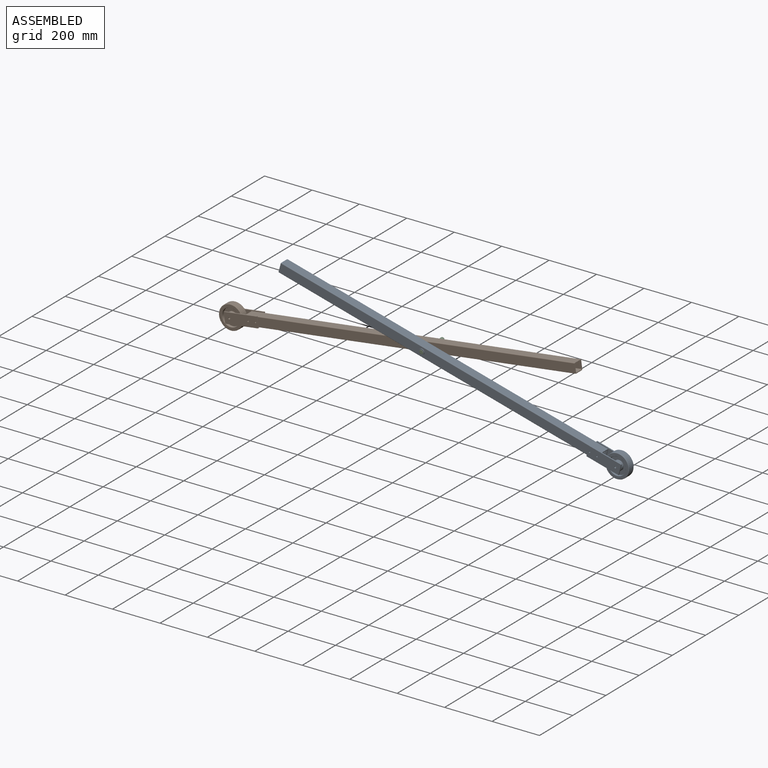
[diagram: assembled view]
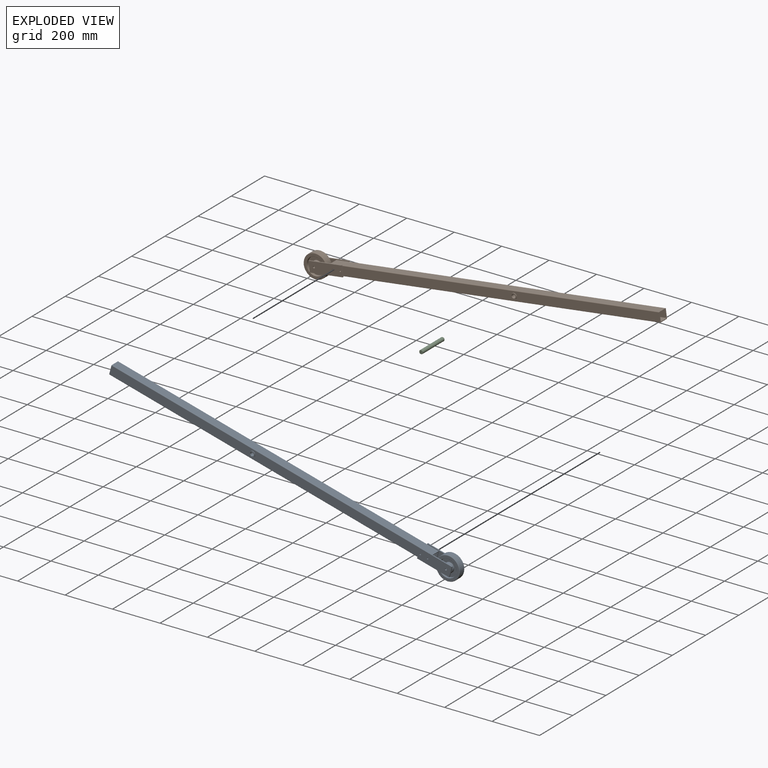
[diagram: exploded view]
GUIDED TOUR — MATED ASSEMBLY WITH SUBASSEMBLIES (Onshape document 15efd71c1603924e5f9fa92a, AutoMate assembly 15efd71c1603924e5f9fa92a_ca3fd9b285ac05b5e3fbfa89_e951f62505115665aa1df28f_default)

This assembly has 11 component occurrences arranged in 3 top-level units: 1 individual components plus 2 subassemblies (S0, S1). The tour has two levels: first the top level, where each subassembly is treated as one rigid unit; then each subassembly is toured internally in its own section (nesting deeper than one subassembly level is flattened into its subassembly's section).

Components are labeled P0..P10 across the whole record; subassembly units are labeled S0..S1. A mate is a constraint between two units; its type names the relative motion it leaves free:
  FASTENED — locks the two components together rigidly (no relative motion),
  REVOLUTE — leaves rotation about the listed axis free (a hinge).
Axis/direction vectors are unit vectors and 'through' points are millimeter coordinates, both in the assembly's world frame.

TOP-LEVEL MATES (between units; each subassembly's internal mates are listed in its own section)
  1. REVOLUTE "Drehen 2": S1 <-> S0, axis (0.000, -1.000, 0.000) through (-1166.84, -342.71, 442.33) mm
  2. REVOLUTE "Drehen 1": P8 <-> S0, axis (0.000, -1.000, 0.000) through (-1166.84, -388.71, 442.33) mm

TOP-LEVEL ASSEMBLY ORDER
  1. P8 — the base component [order verified]
  2. S1 [order verified]
  3. S0 [order verified]
Order-tag legend:
  [order verified] — this step's position reverses a verified removal order: the component was checked to insert without passing through the ones already placed.

Of the 11 component occurrences, 7 carry the full construction recipe — the FeatureScript program that regenerates the part's solid from scratch; the rest are supplied as boundary geometry only. Each toured unit is shown spotlighted twice — assembled, then exploded with a leader line back to its socket (green = recipe-attached component, orange = geometry-only, blue = subassembly unit; the rest desaturated gray).
NOTE — this tour is split across 2 documents so each fits a 32k-token context. This is document 1: the component sections continue in the remaining 1 document, each repeating the header above.
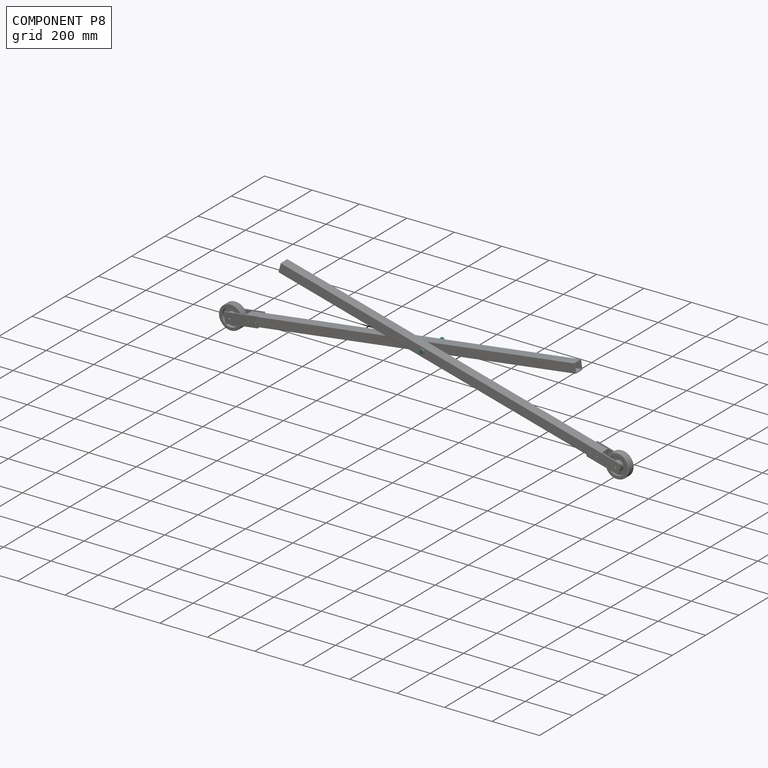
[diagram: component P8 — assembled]
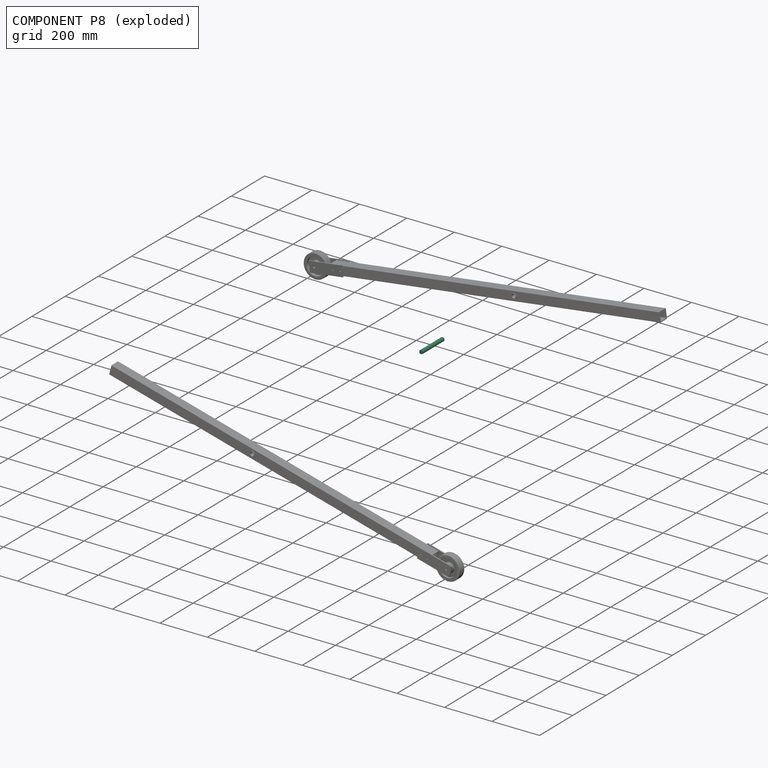
[diagram: component P8 — exploded]
COMPONENT P8 — recipe-attached (CADFS 00886189, mesh-verified: the recipe's output STEP matches this component's geometry to below the mesh-comparison resolution (tessellation chordal tolerance ~0.198 mm)).
Held by: REVOLUTE mate "Drehen 1" to P0.
Construction recipe (FeatureScript — the CAD program that rebuilds this solid; sketch coordinates are in the units given by the * unit suffixes, e.g. mm):

FeatureScript 1634;
import(path : "onshape/std/geometry.fs", version : "1634.0");
import(path : "onshape/std/common.fs", version : "1634.0");
const mm = millimeter;
const VERTEX = EntityType.VERTEX;
const EDGE = EntityType.EDGE;
const FACE = EntityType.FACE;
const BODY = EntityType.BODY;
function v(x, y){return vector(x, y);}
function OD(order){return orderDisambiguation(order);}
function OSD(set){return originalSetDisambiguation(set);}
function TD(topology){return topologyDisambiguation(topology);}
function TDD(query){return trueDependencyDisambiguation(query);}
function sQuery(a, b, c) {return sketchEntityQuery(a, b, c);}

annotation { "Feature Type Name" : "Feature", "Feature Type Description" : "" }
export const myFeature = defineFeature(function(context is Context, id is Id, definition is map)
    precondition{}
    {
        {
            var Q0;
            Q0=qCreatedBy(makeId("Front.planeOp"),FACE);
            var sketch = newSketch(context, id + "F0", { "sketchPlane" : qUnion([Q0])});
            skCircle(sketch, "E0", {"center": v(0, 0) * mm, "radius": 8 * mm});
            skSolve(sketch);
        }
        {
            var Q0;
            Q0=makeQuery(id+"F0.imprint","IMPRINT",FACE,{"disambiguationData":[TD([[makeQuery(id+"F0.imprint","IMPRINT",EDGE,{"derivedFrom":sQuery(id+"F0.wireOp",EDGE,"E0")}),1.0]])]});
            extrude(context, id + "F1", {"entities" : qUnion([Q0]), "depth" : 130 * mm, "offsetDistance" : 25 * mm});
        }
        {
            var Q0;
            Q0=makeQuery(id+"F1.opExtrude","CAP_EDGE",EDGE,{"disambiguationData":[OSD([sQuery(id+"F0.wireOp",EDGE,"E0")])],"isStart":false});
            fillet(context, id + "F2", {"entities" : qUnion([Q0]), "radius" : 1 * mm, "tangentPropagation" : true, "allowEdgeOverflow" : false});
        }
    });
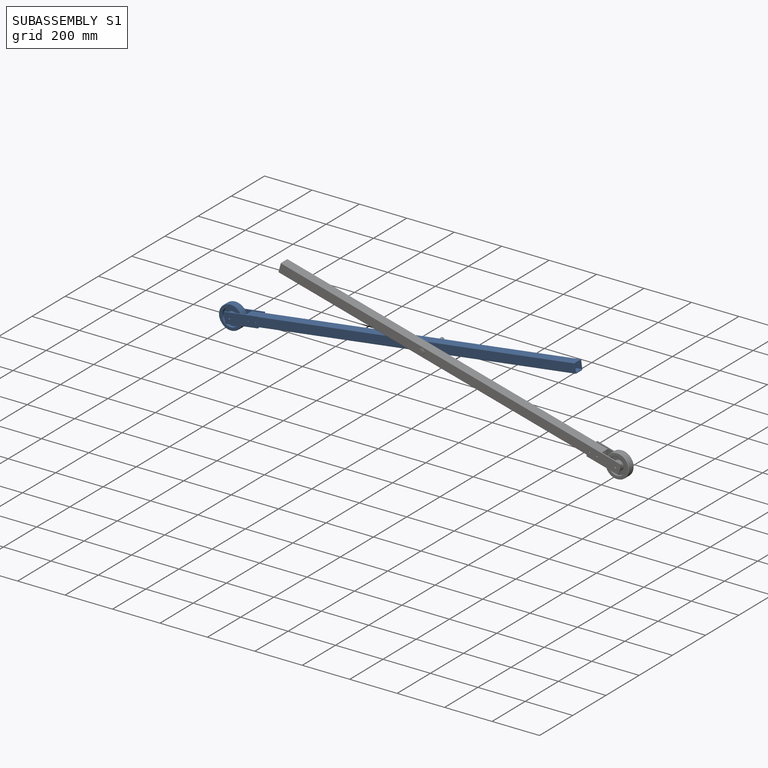
[diagram: subassembly S1 — assembled]
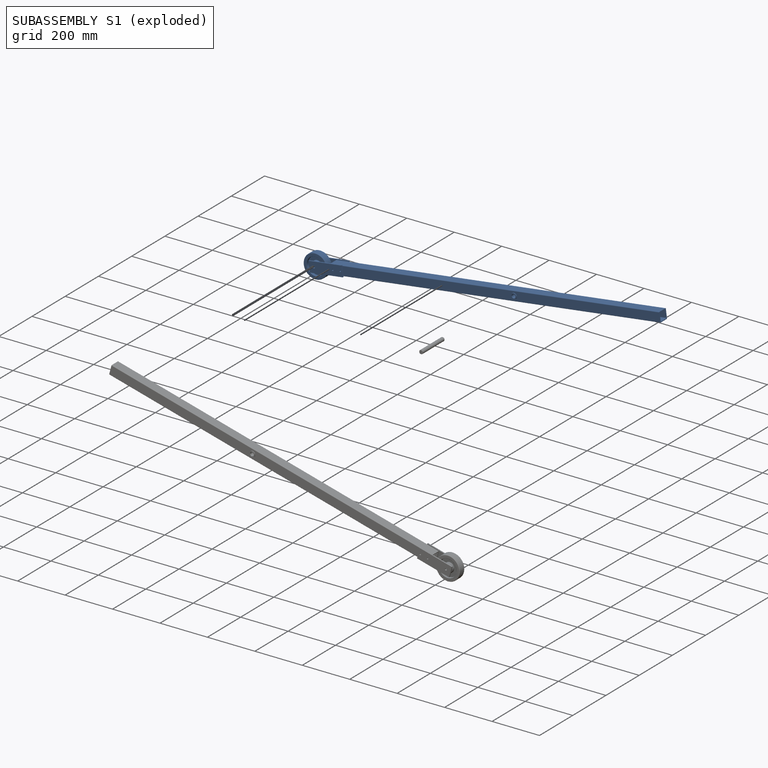
[diagram: subassembly S1 — exploded]
SUBASSEMBLY S1 — 5 components (P2, P5, P6, P7, P9), of which 3 recipe-attached; toured below.
Held by: REVOLUTE mate "Drehen 2" to S0.
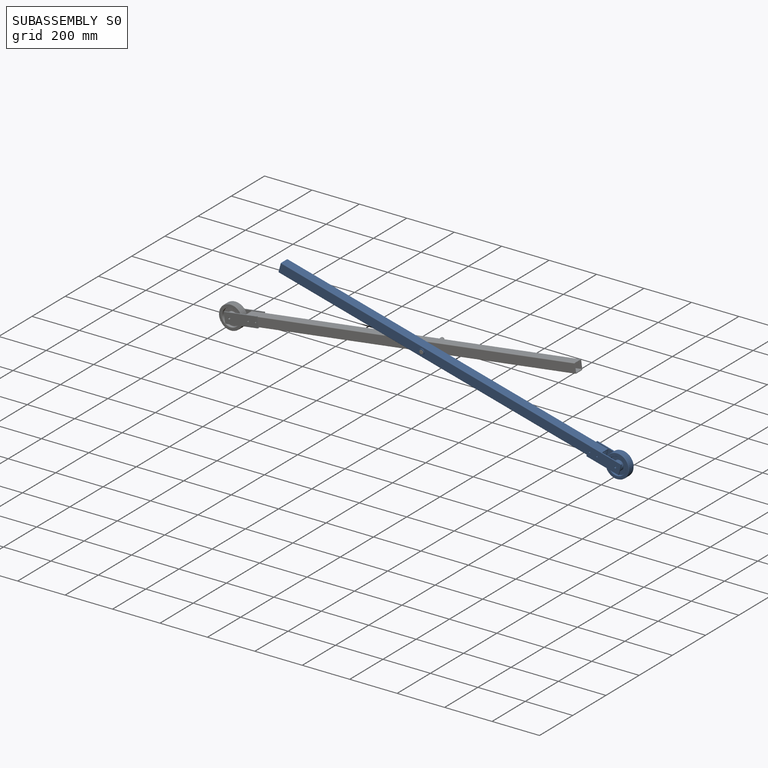
[diagram: subassembly S0 — assembled]
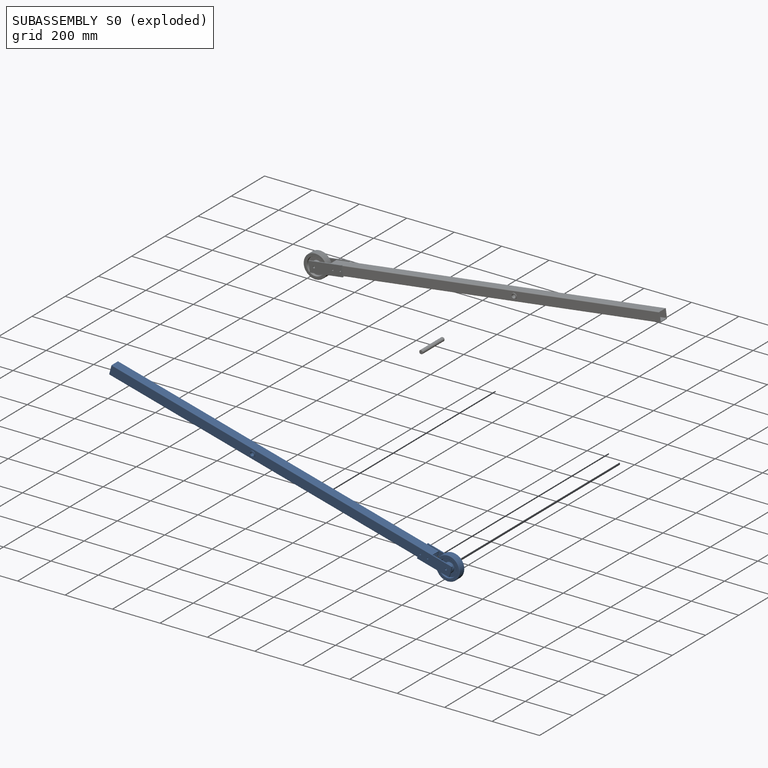
[diagram: subassembly S0 — exploded]
SUBASSEMBLY S0 — 5 components (P0, P1, P3, P4, P10), of which 3 recipe-attached; toured below.
Held by: REVOLUTE mate "Drehen 2" to S1; REVOLUTE mate "Drehen 1" to P8.
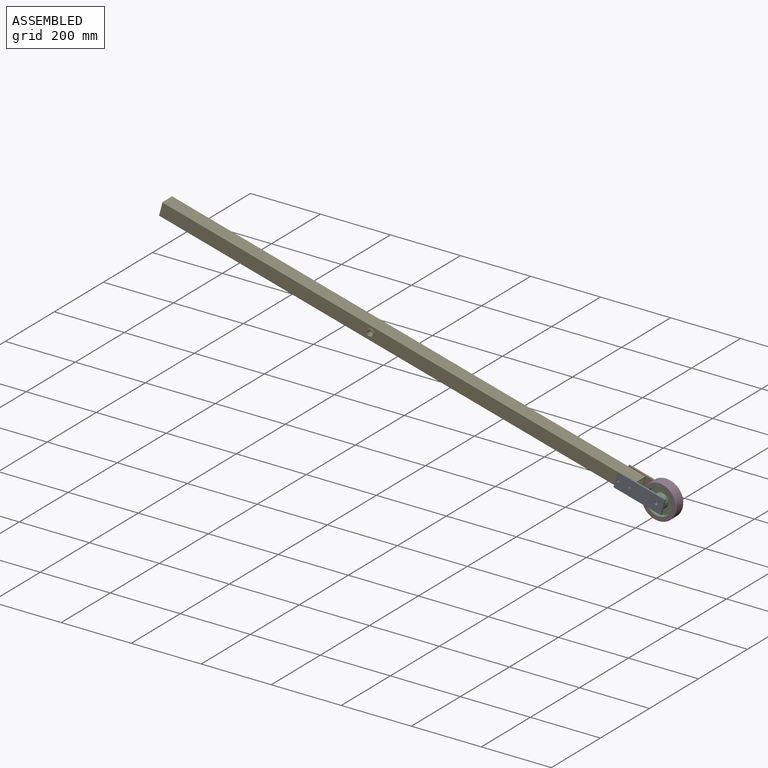
[diagram: subassembly S0 — assembled view]
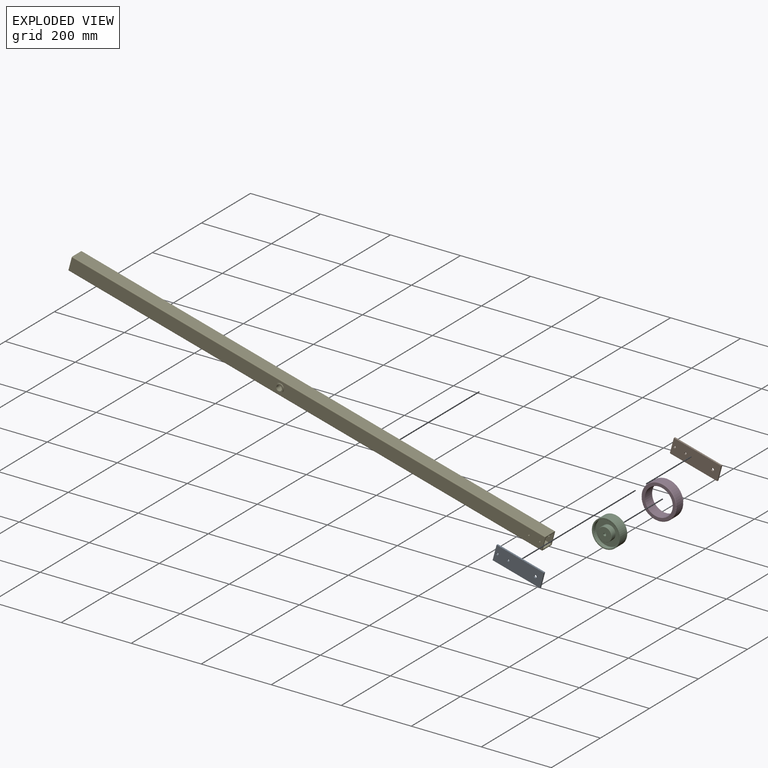
[diagram: subassembly S0 — exploded view]
SUBASSEMBLY S0 TOUR — 5 components, shown here in isolation at its own camera.

INTERNAL MATES
  1. FASTENED "Fest 1": P1 <-> P10, direction (0.000, -1.000, 0.000) through (-455.86, -345.71, 252.09) mm
  2. FASTENED "Fest 1": P3 <-> P4, direction (0.000, -1.000, 0.000) through (-347.66, -379.71, 223.15) mm
  3. FASTENED "Fest 2": P10 <-> P0, direction (0.000, -1.000, 0.000) through (-455.86, -385.71, 252.09) mm
  4. REVOLUTE "Drehen 1": P3 <-> P1, axis (0.000, 1.000, 0.000) through (-347.66, -345.71, 223.15) mm
  5. FASTENED "Fest 1": P3 <-> P4, direction (0.000, -1.000, 0.000) through (-347.66, -379.71, 223.15) mm
  6. FASTENED "Fest 1": P1 <-> P10, direction (0.000, -1.000, 0.000) through (-455.86, -345.71, 252.09) mm
  7. FASTENED "Fest 2": P10 <-> P0, direction (0.000, -1.000, 0.000) through (-455.86, -385.71, 252.09) mm
  8. REVOLUTE "Drehen 1": P3 <-> P1, axis (0.000, 1.000, 0.000) through (-347.66, -345.71, 223.15) mm

ASSEMBLY ORDER (within the subassembly)
  1. P4 — the base component [order verified]
  2. P3 [order verified]
  3. P10 [order verified]
  4. P0 [order verified]
  5. P1 [order verified]
(P3 verified with a relaxed clearance tolerance: the source model stores slight part interference there.)
Order-tag legend:
  [order verified] — this step's position reverses a verified removal order: the component was checked to insert without passing through the ones already placed.
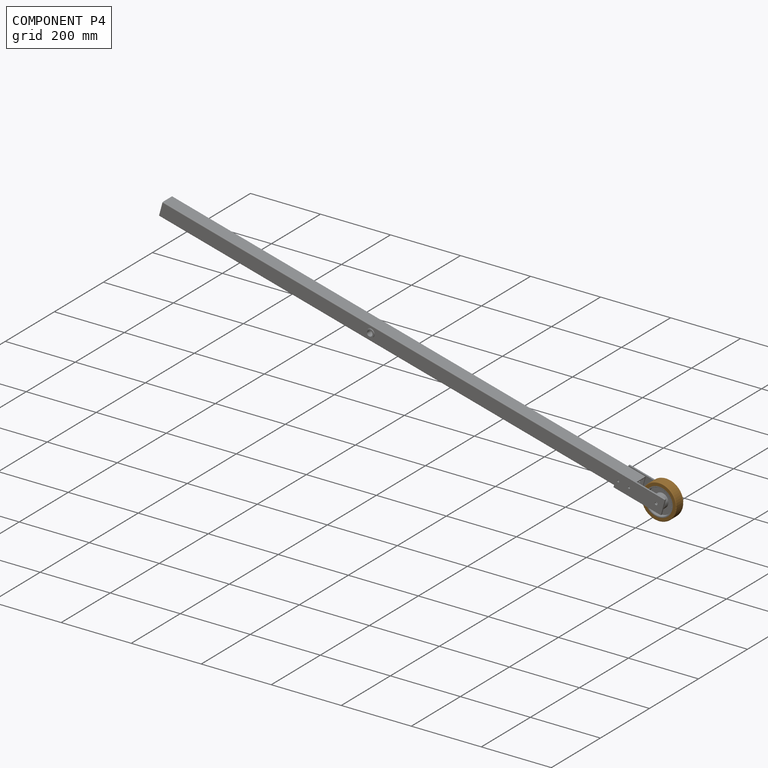
[diagram: component P4 — assembled]
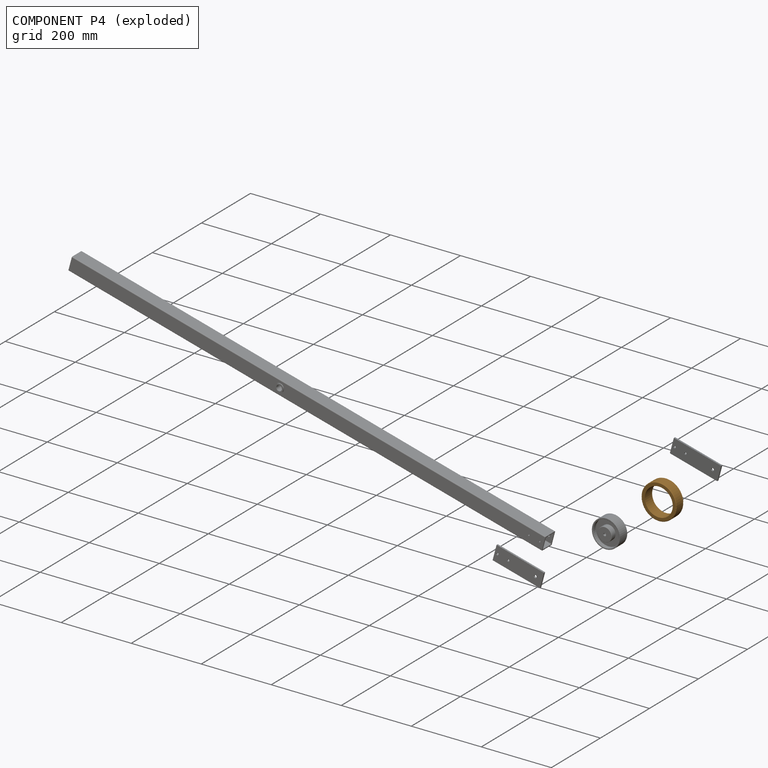
[diagram: component P4 — exploded]
COMPONENT P4 — geometry summary (no construction recipe available for this part):
  bounding box: 108.2 x 108.2 x 30.0 mm
  B-rep topology: 1 solid, 6 faces, 20 edges
  volume: 84288 mm^3 (24% of its bounding box)
  symmetry: revolution-symmetric about the x axis through its bounding-box center; 2-fold rotationally symmetric about the y axis; 2-fold rotationally symmetric about the z axis; mirror-symmetric across its x mid-plane, y mid-plane, z mid-plane
Held by: FASTENED mate "Fest 1" to P3; FASTENED mate "Fest 1" to P3.
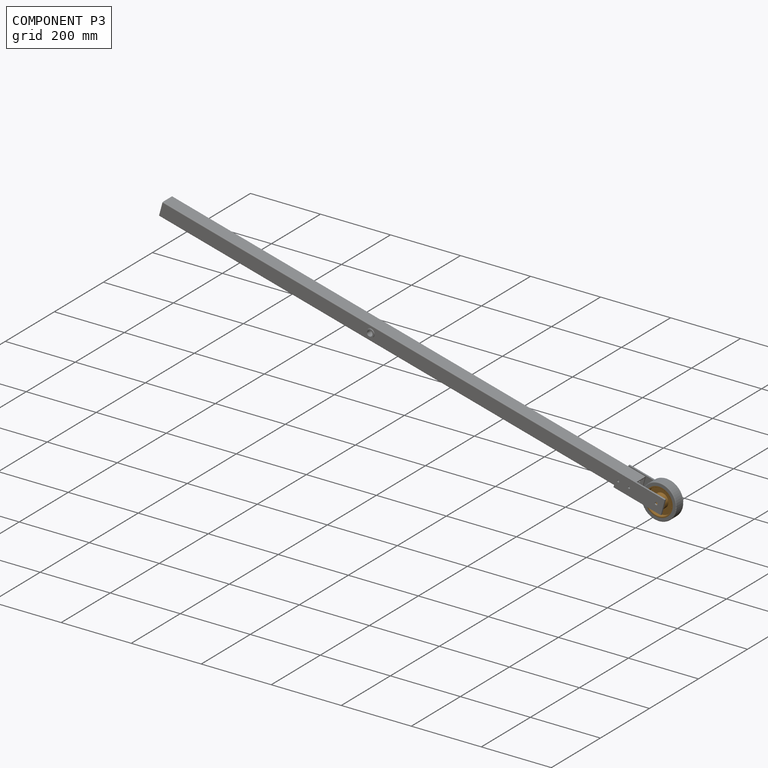
[diagram: component P3 — assembled]
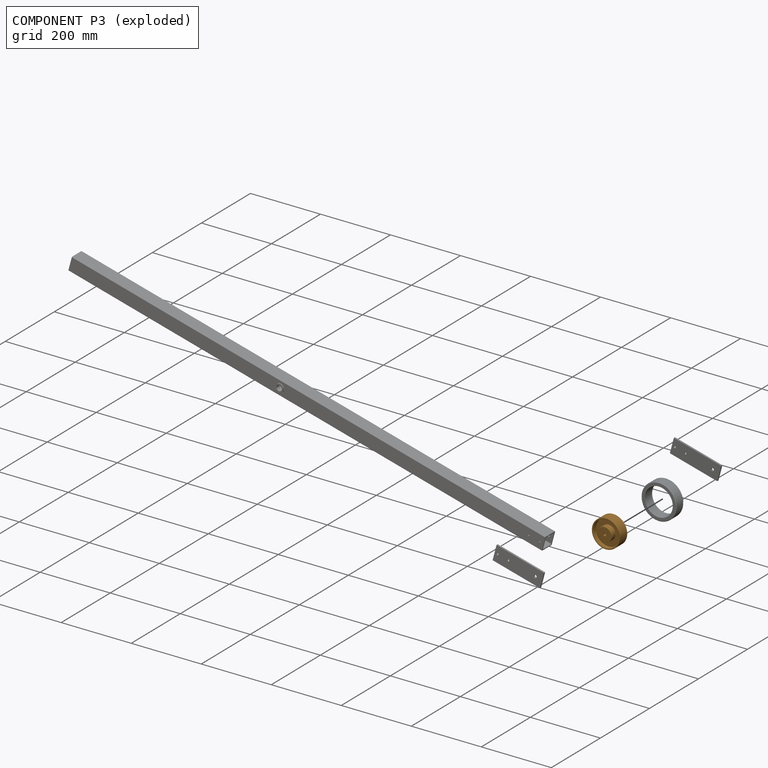
[diagram: component P3 — exploded]
COMPONENT P3 — geometry summary (no construction recipe available for this part):
  bounding box: 82.7 x 82.7 x 40.0 mm
  B-rep topology: 1 solid, 16 faces, 58 edges
  volume: 96767 mm^3 (35% of its bounding box)
  symmetry: revolution-symmetric about the x axis through its bounding-box center; 2-fold rotationally symmetric about the y axis; 2-fold rotationally symmetric about the z axis; mirror-symmetric across its x mid-plane, y mid-plane, z mid-plane
Held by: FASTENED mate "Fest 1" to P4; REVOLUTE mate "Drehen 1" to P1; FASTENED mate "Fest 1" to P4; REVOLUTE mate "Drehen 1" to P1.
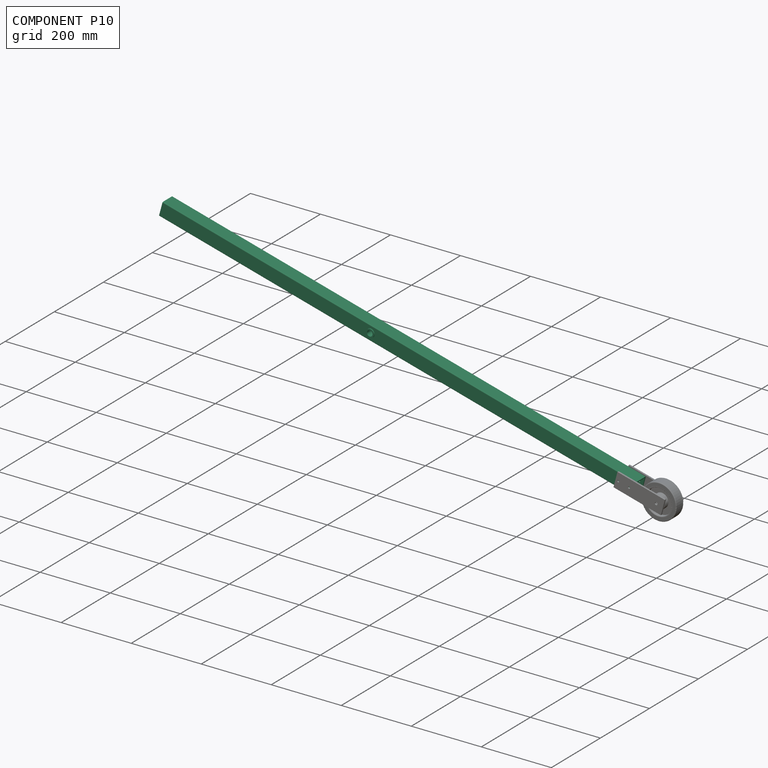
[diagram: component P10 — assembled]
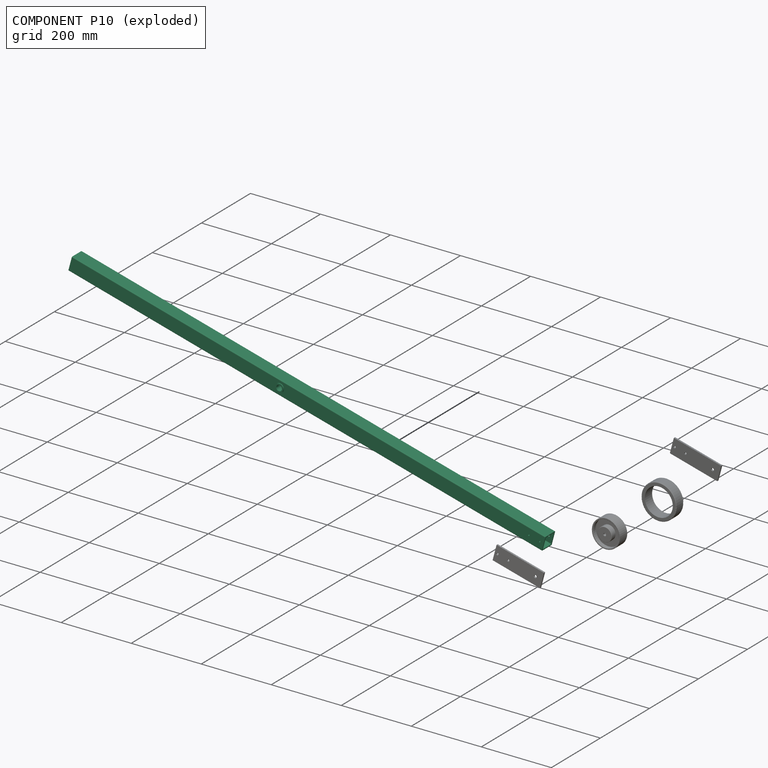
[diagram: component P10 — exploded]
COMPONENT P10 — recipe-attached (CADFS 00886186, mesh-verified: the recipe's output STEP matches this component's geometry to below the mesh-comparison resolution (tessellation chordal tolerance ~2.1 mm)).
Held by: FASTENED mate "Fest 1" to P1; FASTENED mate "Fest 2" to P0; FASTENED mate "Fest 1" to P1; FASTENED mate "Fest 2" to P0.
Construction recipe (FeatureScript — the CAD program that rebuilds this solid; sketch coordinates are in the units given by the * unit suffixes, e.g. mm):

FeatureScript 1634;
import(path : "onshape/std/geometry.fs", version : "1634.0");
import(path : "onshape/std/common.fs", version : "1634.0");
const mm = millimeter;
const VERTEX = EntityType.VERTEX;
const EDGE = EntityType.EDGE;
const FACE = EntityType.FACE;
const BODY = EntityType.BODY;
function v(x, y){return vector(x, y);}
function OD(order){return orderDisambiguation(order);}
function OSD(set){return originalSetDisambiguation(set);}
function TD(topology){return topologyDisambiguation(topology);}
function TDD(query){return trueDependencyDisambiguation(query);}
function sQuery(a, b, c) {return sketchEntityQuery(a, b, c);}

annotation { "Feature Type Name" : "Feature", "Feature Type Description" : "" }
export const myFeature = defineFeature(function(context is Context, id is Id, definition is map)
    precondition{}
    {
        {
            assignVariable(context, id + "F0", {"name" : "spanntraeger", "anyValue" : 1400});
        }
        {
            assignVariable(context, id + "F1", {"name" : "HaupttraegerRohr_X", "anyValue" : 40});
        }
        {
            var Q0;
            Q0=qCreatedBy(makeId("Right.planeOp"),FACE);
            var sketch = newSketch(context, id + "F2", { "sketchPlane" : qUnion([Q0])});
            skLineSegment(sketch, "E0.bottom", {"start": v(-17.11, 20.05) * mm, "end": v(18.89, 20.05) * mm});
            skLineSegment(sketch, "E0.top", {"start": v(-17.11, -19.95) * mm, "end": v(18.89, -19.95) * mm});
            skLineSegment(sketch, "E0.left", {"start": v(-19.11, 18.05) * mm, "end": v(-19.11, -17.95) * mm});
            skLineSegment(sketch, "E0.right", {"start": v(20.89, 18.05) * mm, "end": v(20.89, -17.95) * mm});
            skLineSegment(sketch, "E1.0", {"start": v(-16.11, 15.05) * mm, "end": v(-16.11, -14.95) * mm});
            skLineSegment(sketch, "E1.1", {"start": v(-14.11, 17.05) * mm, "end": v(17.89, 17.05) * mm});
            skLineSegment(sketch, "E1.2", {"start": v(17.89, 17.05) * mm, "end": v(17.89, -14.95) * mm});
            skLineSegment(sketch, "E1.3", {"start": v(-14.11, -16.95) * mm, "end": v(15.89, -16.95) * mm});
            skPoint(sketch, "E2.visualSharp", {"position": v(-19.11, 20.05) * mm});
            skArc(sketch, "E2.filletArc", {"start": v(-17.11, 20.05) * mm, "mid": v(-18.53, 19.46) * mm, "end": v(-19.11, 18.05) * mm});
            skPoint(sketch, "E3.visualSharp", {"position": v(-19.11, -19.95) * mm});
            skArc(sketch, "E3.filletArc", {"start": v(-19.11, -17.95) * mm, "mid": v(-18.53, -19.36) * mm, "end": v(-17.11, -19.95) * mm});
            skPoint(sketch, "E4.visualSharp", {"position": v(20.89, -19.95) * mm});
            skArc(sketch, "E4.filletArc", {"start": v(18.89, -19.95) * mm, "mid": v(20.3, -19.36) * mm, "end": v(20.89, -17.95) * mm});
            skPoint(sketch, "E5.visualSharp", {"position": v(20.89, 20.05) * mm});
            skArc(sketch, "E5.filletArc", {"start": v(20.89, 18.05) * mm, "mid": v(20.3, 19.46) * mm, "end": v(18.89, 20.05) * mm});
            skPoint(sketch, "E6.visualSharp", {"position": v(17.89, -16.95) * mm});
            skArc(sketch, "E6.filletArc", {"start": v(15.89, -16.95) * mm, "mid": v(17.3, -16.36) * mm, "end": v(17.89, -14.95) * mm});
            skPoint(sketch, "E7.visualSharp", {"position": v(-16.11, -16.95) * mm});
            skArc(sketch, "E7.filletArc", {"start": v(-16.11, -14.95) * mm, "mid": v(-15.53, -16.36) * mm, "end": v(-14.11, -16.95) * mm});
            skPoint(sketch, "E8.visualSharp", {"position": v(-16.11, 17.05) * mm});
            skArc(sketch, "E8.filletArc", {"start": v(-14.11, 17.05) * mm, "mid": v(-15.53, 16.46) * mm, "end": v(-16.11, 15.05) * mm});
            skSolve(sketch);
        }
        {
            var Q0;
            Q0 = qSketchRegion(id + "F2", true);
            extrude(context, id + "F3", {"entities" : qUnion([Q0]), "oppositeDirection" : true, "depth" : (getVariable(context, 'spanntraeger')) * mm, "offsetDistance" : 25 * mm});
        }
        {
            var Q0;
            Q0=makeQuery(id+"F3.opExtrude","SWEPT_FACE",FACE,{"disambiguationData":[OSD([sQuery(id+"F2.wireOp",EDGE,"E0.left")])]});
            var sketch = newSketch(context, id + "F4", { "sketchPlane" : qUnion([Q0])});
            skCircle(sketch, "E9", {"center": v(-780, 0.05) * mm, "radius": 8 * mm});
            skCircle(sketch, "E10", {"center": v(-780, 0.05) * mm, "radius": 12 * mm});
            skLineSegment(sketch, "E11", {"start": v(0, 0) * mm, "end": v(-110.05, 0) * mm, "construction": true});
            skCircle(sketch, "E12", {"center": v(-12, 0) * mm, "radius": 2 * mm});
            skCircle(sketch, "E13", {"center": v(-44, 0) * mm, "radius": 2 * mm});
            skSolve(sketch);
        }
        {
            var Q0;
            Q0=makeQuery(id+"F4.imprint","IMPRINT",FACE,{"disambiguationData":[TD([[makeQuery(id+"F4.imprint","IMPRINT",EDGE,{"derivedFrom":sQuery(id+"F4.wireOp",EDGE,"E9")}),-1.0]])]});
            extrude(context, id + "F5", {"entities" : qUnion([Q0]), "operationType" : NewBodyOperationType.ADD, "depth" : 3 * mm, "offsetDistance" : 25 * mm, "hasSecondDirection" : true, "secondDirectionOppositeDirection" : true, "secondDirectionDepth" : (getVariable(context, 'HaupttraegerRohr_X') + 3) * mm});
        }
        {
            var Q0;
            Q0=makeQuery(id+"F5.boolean.opBoolean","SPLIT",FACE,{"disambiguationData":[TD([makeQuery(id+"F5.opExtrude","SWEPT_FACE",FACE,{"disambiguationData":[OSD([sQuery(id+"F4.wireOp",EDGE,"E9")])]})])],"derivedFrom":makeQuery(id+"F3.opExtrude","SWEPT_FACE",FACE,{"disambiguationData":[OSD([sQuery(id+"F2.wireOp",EDGE,"E0.right")])]})});
            extrude(context, id + "F6", {"entities" : qUnion([Q0]), "operationType" : NewBodyOperationType.REMOVE, "oppositeDirection" : true, "depth" : 63 * mm, "offsetDistance" : 25 * mm});
        }
        {
            var Q0;
            Q0=makeQuery(id+"F4.imprint","IMPRINT",FACE,{"disambiguationData":[TD([[makeQuery(id+"F4.imprint","IMPRINT",EDGE,{"derivedFrom":sQuery(id+"F4.wireOp",EDGE,"E13")}),1.0]])]});
            var Q1;
            Q1=makeQuery(id+"F4.imprint","IMPRINT",FACE,{"disambiguationData":[TD([[makeQuery(id+"F4.imprint","IMPRINT",EDGE,{"derivedFrom":sQuery(id+"F4.wireOp",EDGE,"E12")}),1.0]])]});
            extrude(context, id + "F7", {"entities" : qUnion([Q0, Q1]), "operationType" : NewBodyOperationType.REMOVE, "oppositeDirection" : true, "depth" : 50000 * mm, "offsetDistance" : 25 * mm});
        }
    });
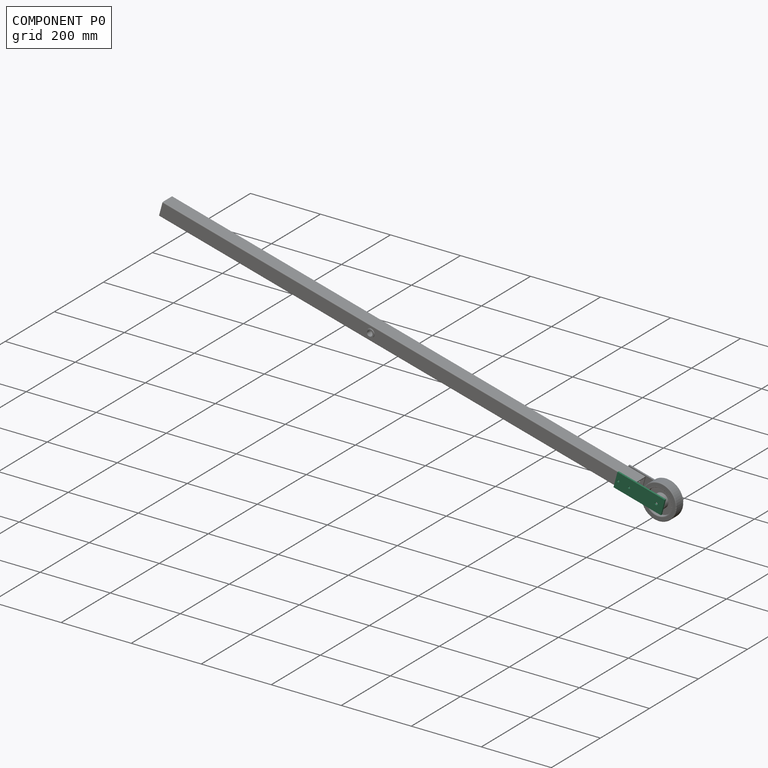
[diagram: component P0 — assembled]
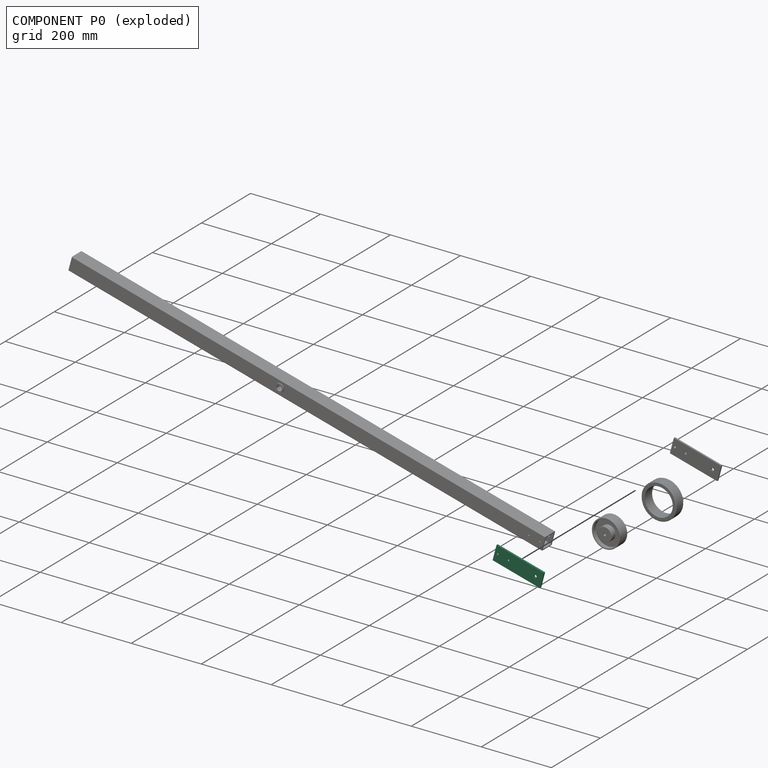
[diagram: component P0 — exploded]
COMPONENT P0 — recipe-attached (CADFS 00886190, mesh-verified: the recipe's output STEP matches this component's geometry to below the mesh-comparison resolution (tessellation chordal tolerance ~0.22 mm)).
Held by: FASTENED mate "Fest 2" to P10; FASTENED mate "Fest 2" to P10.
Construction recipe (FeatureScript — the CAD program that rebuilds this solid; sketch coordinates are in the units given by the * unit suffixes, e.g. mm):

FeatureScript 1634;
import(path : "onshape/std/geometry.fs", version : "1634.0");
import(path : "onshape/std/common.fs", version : "1634.0");
const mm = millimeter;
const VERTEX = EntityType.VERTEX;
const EDGE = EntityType.EDGE;
const FACE = EntityType.FACE;
const BODY = EntityType.BODY;
function v(x, y){return vector(x, y);}
function OD(order){return orderDisambiguation(order);}
function OSD(set){return originalSetDisambiguation(set);}
function TD(topology){return topologyDisambiguation(topology);}
function TDD(query){return trueDependencyDisambiguation(query);}
function sQuery(a, b, c) {return sketchEntityQuery(a, b, c);}

annotation { "Feature Type Name" : "Feature", "Feature Type Description" : "" }
export const myFeature = defineFeature(function(context is Context, id is Id, definition is map)
    precondition{}
    {
        {
            var Q0;
            Q0=qCreatedBy(makeId("Front.planeOp"),FACE);
            var sketch = newSketch(context, id + "F0", { "sketchPlane" : qUnion([Q0])});
            skLineSegment(sketch, "E0.bottom", {"start": v(0, 0) * mm, "end": v(-140, 0) * mm});
            skLineSegment(sketch, "E0.top", {"start": v(0, 44) * mm, "end": v(-140, 44) * mm});
            skLineSegment(sketch, "E0.left", {"start": v(0, 0) * mm, "end": v(0, 44) * mm});
            skLineSegment(sketch, "E0.right", {"start": v(-140, 0) * mm, "end": v(-140, 44) * mm});
            skLineSegment(sketch, "E1.left", {"start": v(6.83, 16.52) * mm, "end": v(6.83, 16.52) * mm});
            skLineSegment(sketch, "E1.right", {"start": v(3.62, 16.52) * mm, "end": v(3.62, 16.52) * mm});
            skCircle(sketch, "E2", {"center": v(-120, 22) * mm, "radius": 4 * mm});
            skLineSegment(sketch, "E3", {"start": v(-120, 22) * mm, "end": v(-22.8, 22) * mm, "construction": true});
            skCircle(sketch, "E4", {"center": v(-8, 22) * mm, "radius": 3 * mm});
            skCircle(sketch, "E5", {"center": v(-40, 22) * mm, "radius": 3 * mm});
            skSolve(sketch);
        }
        {
            var Q0;
            Q0=makeQuery(id+"F0.imprint","IMPRINT",FACE,{"disambiguationData":[TD([[makeQuery(id+"F0.imprint","IMPRINT",EDGE,{"derivedFrom":sQuery(id+"F0.wireOp",EDGE,"E0.bottom")}),-1.0]])]});
            extrude(context, id + "F1", {"entities" : qUnion([Q0]), "depth" : 5 * mm, "offsetDistance" : 25 * mm});
        }
    });
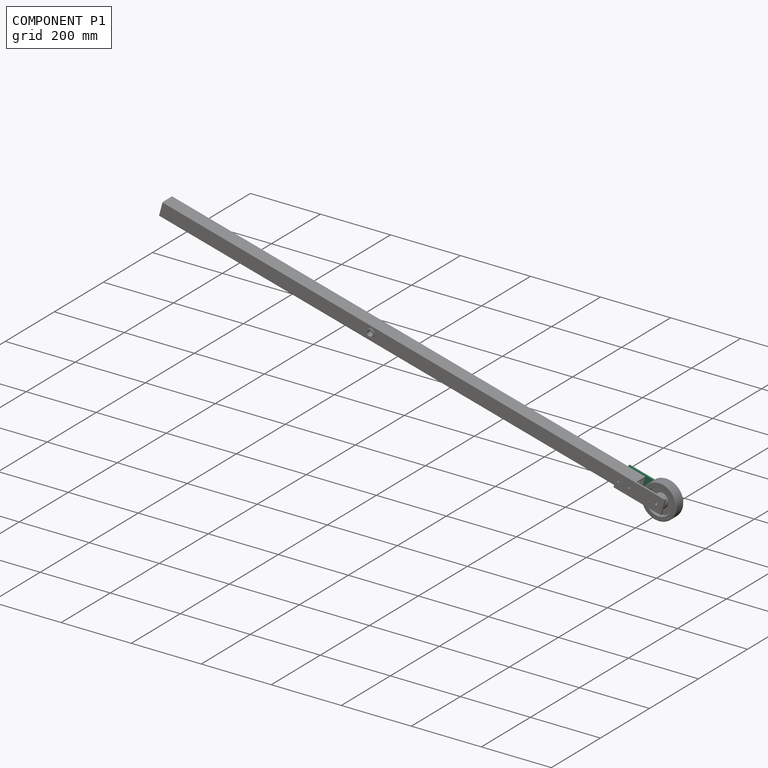
[diagram: component P1 — assembled]
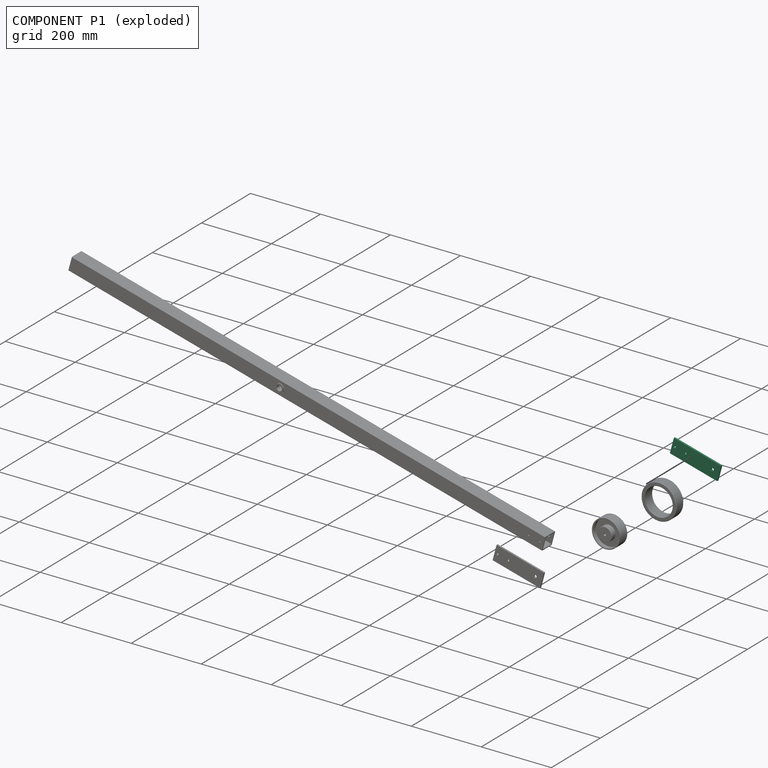
[diagram: component P1 — exploded]
COMPONENT P1 — same part as P0 (CADFS 00886190); its construction recipe is shown at P0.
Held by: FASTENED mate "Fest 1" to P10; REVOLUTE mate "Drehen 1" to P3; FASTENED mate "Fest 1" to P10; REVOLUTE mate "Drehen 1" to P3.
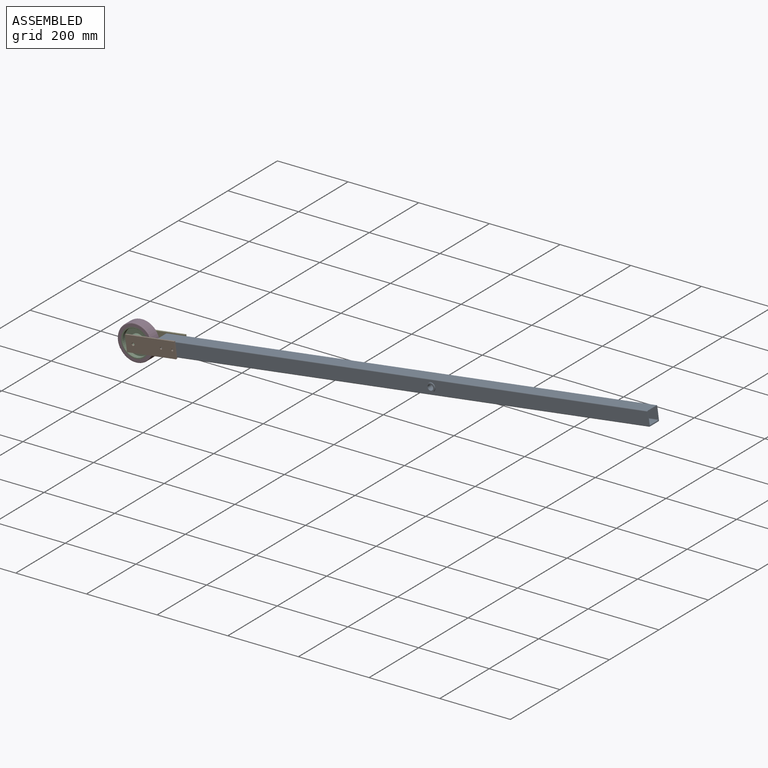
[diagram: subassembly S1 — assembled view]
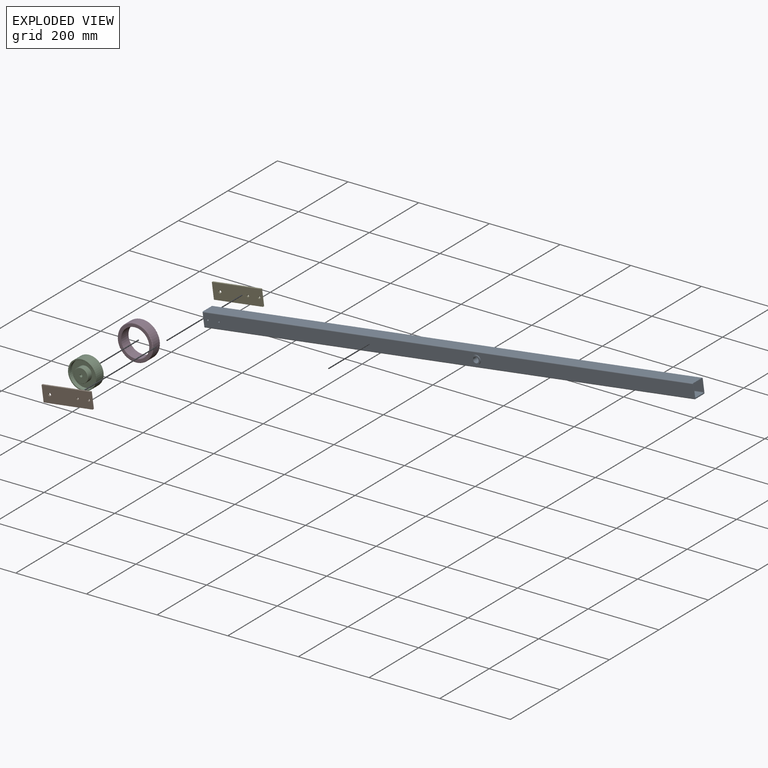
[diagram: subassembly S1 — exploded view]
SUBASSEMBLY S1 TOUR — 5 components, shown here in isolation at its own camera.

INTERNAL MATES
  1. FASTENED "Fest 1": P5 <-> P2, direction (0.000, 1.000, 0.000) through (-1896.23, -339.71, 343.87) mm
  2. FASTENED "Fest 1": P6 <-> P7, direction (0.000, 1.000, 0.000) through (-2007.22, -305.71, 328.90) mm
  3. FASTENED "Fest 2": P2 <-> P9, direction (0.000, 1.000, 0.000) through (-1896.23, -299.71, 343.87) mm
  4. REVOLUTE "Drehen 1": P6 <-> P5, axis (0.000, -1.000, 0.000) through (-2007.22, -339.71, 328.90) mm
  5. FASTENED "Fest 1": P5 <-> P2, direction (0.000, 1.000, 0.000) through (-1896.23, -339.71, 343.87) mm
  6. FASTENED "Fest 1": P6 <-> P7, direction (0.000, 1.000, 0.000) through (-2007.22, -305.71, 328.90) mm
  7. REVOLUTE "Drehen 1": P6 <-> P5, axis (0.000, -1.000, 0.000) through (-2007.22, -339.71, 328.90) mm
  8. FASTENED "Fest 2": P2 <-> P9, direction (0.000, 1.000, 0.000) through (-1896.23, -299.71, 343.87) mm

ASSEMBLY ORDER (within the subassembly)
  1. P7 — the base component [order verified]
  2. P6 [order verified]
  3. P2 [order verified]
  4. P9 [order verified]
  5. P5 [order verified]
(P6 verified with a relaxed clearance tolerance: the source model stores slight part interference there.)
Order-tag legend:
  [order verified] — this step's position reverses a verified removal order: the component was checked to insert without passing through the ones already placed.
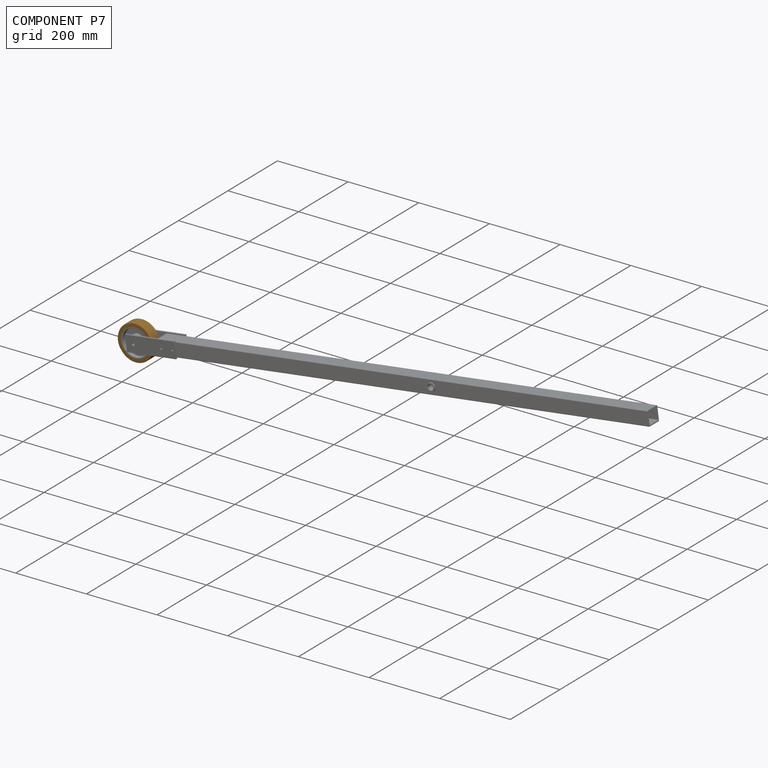
[diagram: component P7 — assembled]
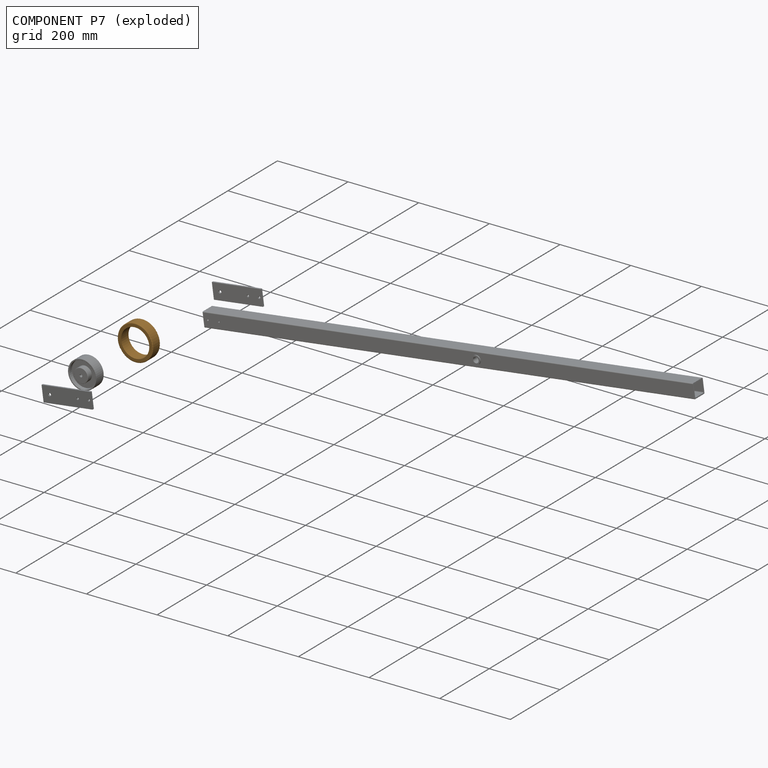
[diagram: component P7 — exploded]
COMPONENT P7 — geometry summary (no construction recipe available for this part):
  bounding box: 108.2 x 108.2 x 30.0 mm
  B-rep topology: 1 solid, 6 faces, 20 edges
  volume: 84288 mm^3 (24% of its bounding box)
  symmetry: revolution-symmetric about the x axis through its bounding-box center; 2-fold rotationally symmetric about the y axis; 2-fold rotationally symmetric about the z axis; mirror-symmetric across its x mid-plane, y mid-plane, z mid-plane
Held by: FASTENED mate "Fest 1" to P6; FASTENED mate "Fest 1" to P6.
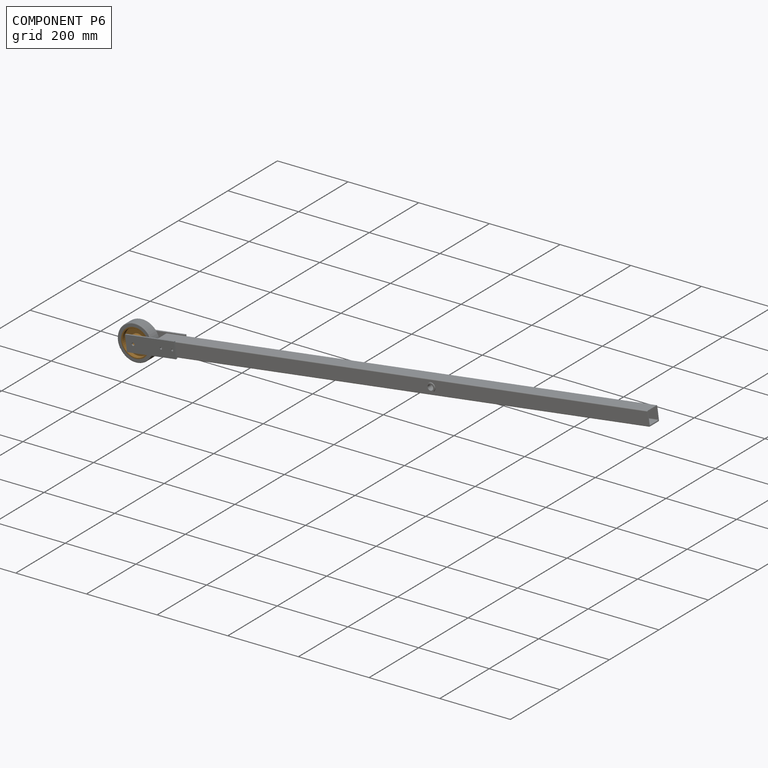
[diagram: component P6 — assembled]
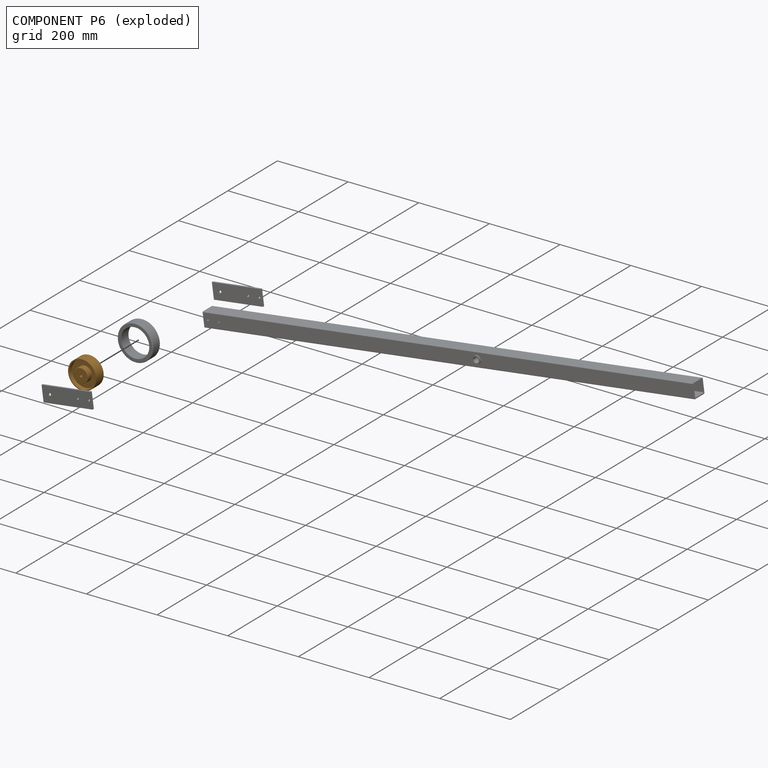
[diagram: component P6 — exploded]
COMPONENT P6 — geometry summary (no construction recipe available for this part):
  bounding box: 82.7 x 82.7 x 40.0 mm
  B-rep topology: 1 solid, 16 faces, 58 edges
  volume: 96767 mm^3 (35% of its bounding box)
  symmetry: revolution-symmetric about the x axis through its bounding-box center; 2-fold rotationally symmetric about the y axis; 2-fold rotationally symmetric about the z axis; mirror-symmetric across its x mid-plane, y mid-plane, z mid-plane
Held by: FASTENED mate "Fest 1" to P7; REVOLUTE mate "Drehen 1" to P5; FASTENED mate "Fest 1" to P7; REVOLUTE mate "Drehen 1" to P5.
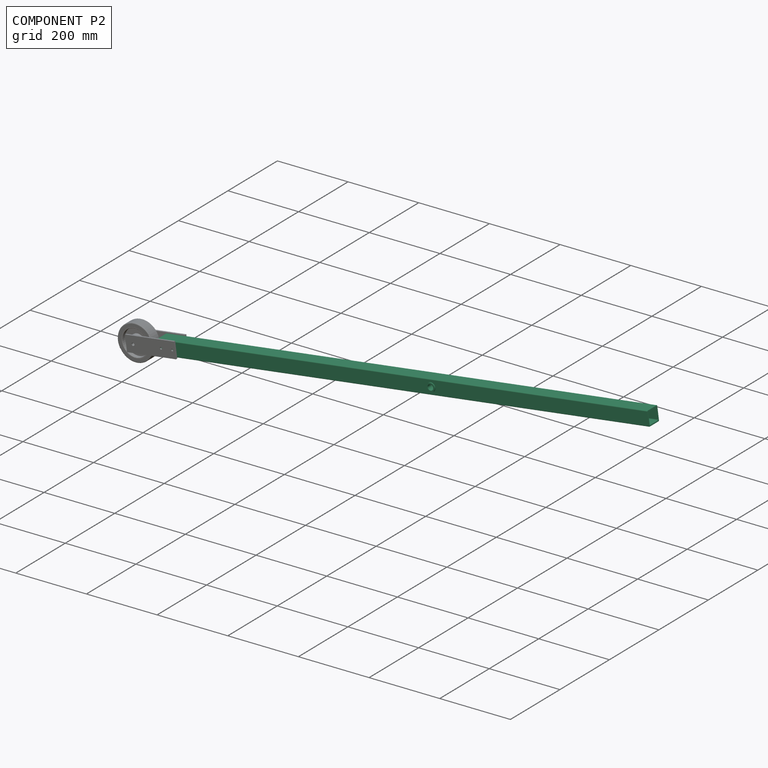
[diagram: component P2 — assembled]
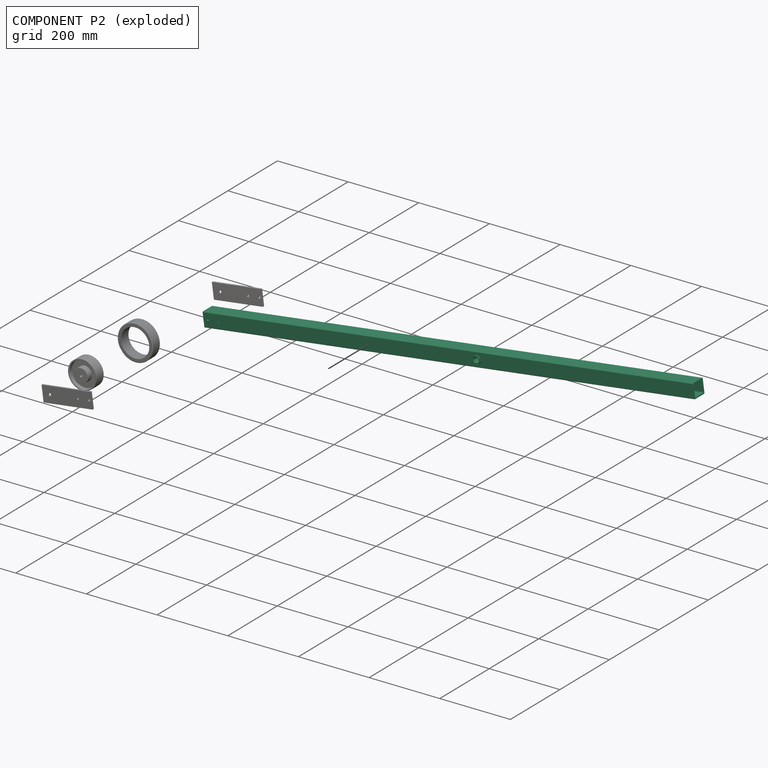
[diagram: component P2 — exploded]
COMPONENT P2 — recipe-attached (CADFS 00886186, mesh-verified: the recipe's output STEP matches this component's geometry to below the mesh-comparison resolution (tessellation chordal tolerance ~2.1 mm)).
Held by: FASTENED mate "Fest 1" to P5; FASTENED mate "Fest 2" to P9; FASTENED mate "Fest 1" to P5; FASTENED mate "Fest 2" to P9.
Construction recipe (FeatureScript — the CAD program that rebuilds this solid; sketch coordinates are in the units given by the * unit suffixes, e.g. mm):

FeatureScript 1634;
import(path : "onshape/std/geometry.fs", version : "1634.0");
import(path : "onshape/std/common.fs", version : "1634.0");
const mm = millimeter;
const VERTEX = EntityType.VERTEX;
const EDGE = EntityType.EDGE;
const FACE = EntityType.FACE;
const BODY = EntityType.BODY;
function v(x, y){return vector(x, y);}
function OD(order){return orderDisambiguation(order);}
function OSD(set){return originalSetDisambiguation(set);}
function TD(topology){return topologyDisambiguation(topology);}
function TDD(query){return trueDependencyDisambiguation(query);}
function sQuery(a, b, c) {return sketchEntityQuery(a, b, c);}

annotation { "Feature Type Name" : "Feature", "Feature Type Description" : "" }
export const myFeature = defineFeature(function(context is Context, id is Id, definition is map)
    precondition{}
    {
        {
            assignVariable(context, id + "F0", {"name" : "spanntraeger", "anyValue" : 1400});
        }
        {
            assignVariable(context, id + "F1", {"name" : "HaupttraegerRohr_X", "anyValue" : 40});
        }
        {
            var Q0;
            Q0=qCreatedBy(makeId("Right.planeOp"),FACE);
            var sketch = newSketch(context, id + "F2", { "sketchPlane" : qUnion([Q0])});
            skLineSegment(sketch, "E0.bottom", {"start": v(-17.11, 20.05) * mm, "end": v(18.89, 20.05) * mm});
            skLineSegment(sketch, "E0.top", {"start": v(-17.11, -19.95) * mm, "end": v(18.89, -19.95) * mm});
            skLineSegment(sketch, "E0.left", {"start": v(-19.11, 18.05) * mm, "end": v(-19.11, -17.95) * mm});
            skLineSegment(sketch, "E0.right", {"start": v(20.89, 18.05) * mm, "end": v(20.89, -17.95) * mm});
            skLineSegment(sketch, "E1.0", {"start": v(-16.11, 15.05) * mm, "end": v(-16.11, -14.95) * mm});
            skLineSegment(sketch, "E1.1", {"start": v(-14.11, 17.05) * mm, "end": v(17.89, 17.05) * mm});
            skLineSegment(sketch, "E1.2", {"start": v(17.89, 17.05) * mm, "end": v(17.89, -14.95) * mm});
            skLineSegment(sketch, "E1.3", {"start": v(-14.11, -16.95) * mm, "end": v(15.89, -16.95) * mm});
            skPoint(sketch, "E2.visualSharp", {"position": v(-19.11, 20.05) * mm});
            skArc(sketch, "E2.filletArc", {"start": v(-17.11, 20.05) * mm, "mid": v(-18.53, 19.46) * mm, "end": v(-19.11, 18.05) * mm});
            skPoint(sketch, "E3.visualSharp", {"position": v(-19.11, -19.95) * mm});
            skArc(sketch, "E3.filletArc", {"start": v(-19.11, -17.95) * mm, "mid": v(-18.53, -19.36) * mm, "end": v(-17.11, -19.95) * mm});
            skPoint(sketch, "E4.visualSharp", {"position": v(20.89, -19.95) * mm});
            skArc(sketch, "E4.filletArc", {"start": v(18.89, -19.95) * mm, "mid": v(20.3, -19.36) * mm, "end": v(20.89, -17.95) * mm});
            skPoint(sketch, "E5.visualSharp", {"position": v(20.89, 20.05) * mm});
            skArc(sketch, "E5.filletArc", {"start": v(20.89, 18.05) * mm, "mid": v(20.3, 19.46) * mm, "end": v(18.89, 20.05) * mm});
            skPoint(sketch, "E6.visualSharp", {"position": v(17.89, -16.95) * mm});
            skArc(sketch, "E6.filletArc", {"start": v(15.89, -16.95) * mm, "mid": v(17.3, -16.36) * mm, "end": v(17.89, -14.95) * mm});
            skPoint(sketch, "E7.visualSharp", {"position": v(-16.11, -16.95) * mm});
            skArc(sketch, "E7.filletArc", {"start": v(-16.11, -14.95) * mm, "mid": v(-15.53, -16.36) * mm, "end": v(-14.11, -16.95) * mm});
            skPoint(sketch, "E8.visualSharp", {"position": v(-16.11, 17.05) * mm});
            skArc(sketch, "E8.filletArc", {"start": v(-14.11, 17.05) * mm, "mid": v(-15.53, 16.46) * mm, "end": v(-16.11, 15.05) * mm});
            skSolve(sketch);
        }
        {
            var Q0;
            Q0 = qSketchRegion(id + "F2", true);
            extrude(context, id + "F3", {"entities" : qUnion([Q0]), "oppositeDirection" : true, "depth" : (getVariable(context, 'spanntraeger')) * mm, "offsetDistance" : 25 * mm});
        }
        {
            var Q0;
            Q0=makeQuery(id+"F3.opExtrude","SWEPT_FACE",FACE,{"disambiguationData":[OSD([sQuery(id+"F2.wireOp",EDGE,"E0.left")])]});
            var sketch = newSketch(context, id + "F4", { "sketchPlane" : qUnion([Q0])});
            skCircle(sketch, "E9", {"center": v(-780, 0.05) * mm, "radius": 8 * mm});
            skCircle(sketch, "E10", {"center": v(-780, 0.05) * mm, "radius": 12 * mm});
            skLineSegment(sketch, "E11", {"start": v(0, 0) * mm, "end": v(-110.05, 0) * mm, "construction": true});
            skCircle(sketch, "E12", {"center": v(-12, 0) * mm, "radius": 2 * mm});
            skCircle(sketch, "E13", {"center": v(-44, 0) * mm, "radius": 2 * mm});
            skSolve(sketch);
        }
        {
            var Q0;
            Q0=makeQuery(id+"F4.imprint","IMPRINT",FACE,{"disambiguationData":[TD([[makeQuery(id+"F4.imprint","IMPRINT",EDGE,{"derivedFrom":sQuery(id+"F4.wireOp",EDGE,"E9")}),-1.0]])]});
            extrude(context, id + "F5", {"entities" : qUnion([Q0]), "operationType" : NewBodyOperationType.ADD, "depth" : 3 * mm, "offsetDistance" : 25 * mm, "hasSecondDirection" : true, "secondDirectionOppositeDirection" : true, "secondDirectionDepth" : (getVariable(context, 'HaupttraegerRohr_X') + 3) * mm});
        }
        {
            var Q0;
            Q0=makeQuery(id+"F5.boolean.opBoolean","SPLIT",FACE,{"disambiguationData":[TD([makeQuery(id+"F5.opExtrude","SWEPT_FACE",FACE,{"disambiguationData":[OSD([sQuery(id+"F4.wireOp",EDGE,"E9")])]})])],"derivedFrom":makeQuery(id+"F3.opExtrude","SWEPT_FACE",FACE,{"disambiguationData":[OSD([sQuery(id+"F2.wireOp",EDGE,"E0.right")])]})});
            extrude(context, id + "F6", {"entities" : qUnion([Q0]), "operationType" : NewBodyOperationType.REMOVE, "oppositeDirection" : true, "depth" : 63 * mm, "offsetDistance" : 25 * mm});
        }
        {
            var Q0;
            Q0=makeQuery(id+"F4.imprint","IMPRINT",FACE,{"disambiguationData":[TD([[makeQuery(id+"F4.imprint","IMPRINT",EDGE,{"derivedFrom":sQuery(id+"F4.wireOp",EDGE,"E13")}),1.0]])]});
            var Q1;
            Q1=makeQuery(id+"F4.imprint","IMPRINT",FACE,{"disambiguationData":[TD([[makeQuery(id+"F4.imprint","IMPRINT",EDGE,{"derivedFrom":sQuery(id+"F4.wireOp",EDGE,"E12")}),1.0]])]});
            extrude(context, id + "F7", {"entities" : qUnion([Q0, Q1]), "operationType" : NewBodyOperationType.REMOVE, "oppositeDirection" : true, "depth" : 50000 * mm, "offsetDistance" : 25 * mm});
        }
    });
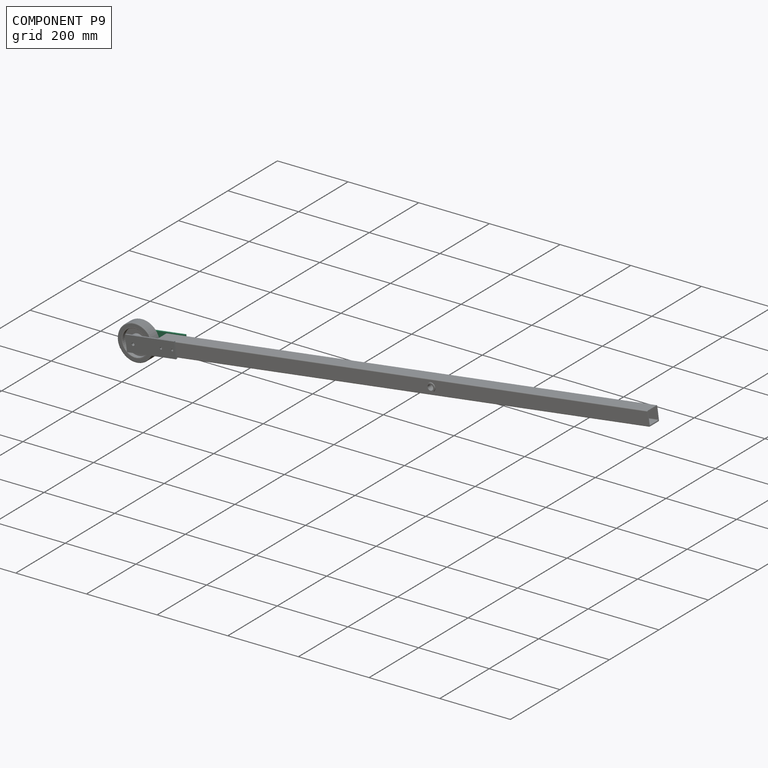
[diagram: component P9 — assembled]
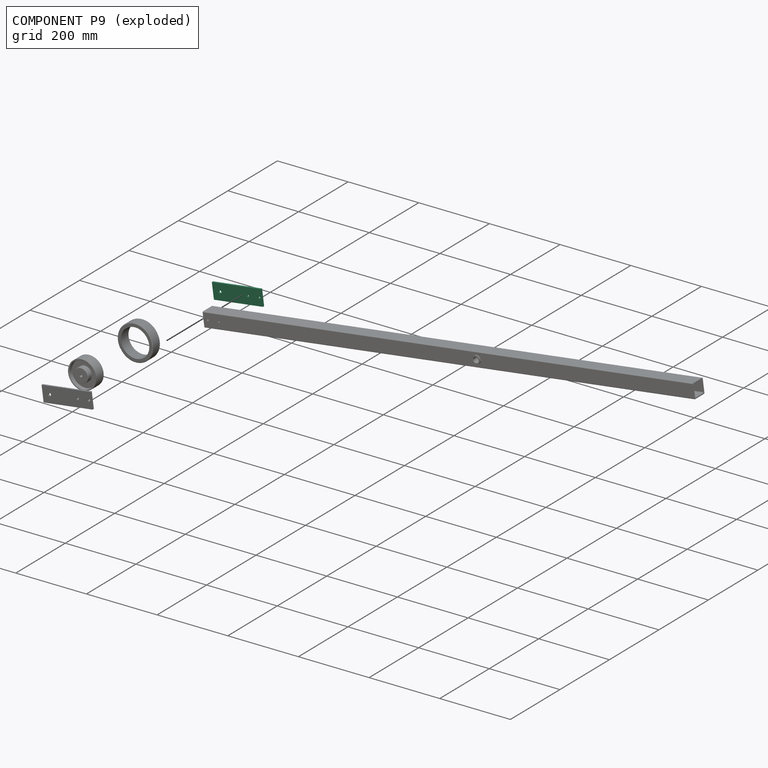
[diagram: component P9 — exploded]
COMPONENT P9 — recipe-attached (CADFS 00886190, mesh-verified: the recipe's output STEP matches this component's geometry to below the mesh-comparison resolution (tessellation chordal tolerance ~0.22 mm)).
Held by: FASTENED mate "Fest 2" to P2; FASTENED mate "Fest 2" to P2.
Construction recipe (FeatureScript — the CAD program that rebuilds this solid; sketch coordinates are in the units given by the * unit suffixes, e.g. mm):

FeatureScript 1634;
import(path : "onshape/std/geometry.fs", version : "1634.0");
import(path : "onshape/std/common.fs", version : "1634.0");
const mm = millimeter;
const VERTEX = EntityType.VERTEX;
const EDGE = EntityType.EDGE;
const FACE = EntityType.FACE;
const BODY = EntityType.BODY;
function v(x, y){return vector(x, y);}
function OD(order){return orderDisambiguation(order);}
function OSD(set){return originalSetDisambiguation(set);}
function TD(topology){return topologyDisambiguation(topology);}
function TDD(query){return trueDependencyDisambiguation(query);}
function sQuery(a, b, c) {return sketchEntityQuery(a, b, c);}

annotation { "Feature Type Name" : "Feature", "Feature Type Description" : "" }
export const myFeature = defineFeature(function(context is Context, id is Id, definition is map)
    precondition{}
    {
        {
            var Q0;
            Q0=qCreatedBy(makeId("Front.planeOp"),FACE);
            var sketch = newSketch(context, id + "F0", { "sketchPlane" : qUnion([Q0])});
            skLineSegment(sketch, "E0.bottom", {"start": v(0, 0) * mm, "end": v(-140, 0) * mm});
            skLineSegment(sketch, "E0.top", {"start": v(0, 44) * mm, "end": v(-140, 44) * mm});
            skLineSegment(sketch, "E0.left", {"start": v(0, 0) * mm, "end": v(0, 44) * mm});
            skLineSegment(sketch, "E0.right", {"start": v(-140, 0) * mm, "end": v(-140, 44) * mm});
            skLineSegment(sketch, "E1.left", {"start": v(6.83, 16.52) * mm, "end": v(6.83, 16.52) * mm});
            skLineSegment(sketch, "E1.right", {"start": v(3.62, 16.52) * mm, "end": v(3.62, 16.52) * mm});
            skCircle(sketch, "E2", {"center": v(-120, 22) * mm, "radius": 4 * mm});
            skLineSegment(sketch, "E3", {"start": v(-120, 22) * mm, "end": v(-22.8, 22) * mm, "construction": true});
            skCircle(sketch, "E4", {"center": v(-8, 22) * mm, "radius": 3 * mm});
            skCircle(sketch, "E5", {"center": v(-40, 22) * mm, "radius": 3 * mm});
            skSolve(sketch);
        }
        {
            var Q0;
            Q0=makeQuery(id+"F0.imprint","IMPRINT",FACE,{"disambiguationData":[TD([[makeQuery(id+"F0.imprint","IMPRINT",EDGE,{"derivedFrom":sQuery(id+"F0.wireOp",EDGE,"E0.bottom")}),-1.0]])]});
            extrude(context, id + "F1", {"entities" : qUnion([Q0]), "depth" : 5 * mm, "offsetDistance" : 25 * mm});
        }
    });
